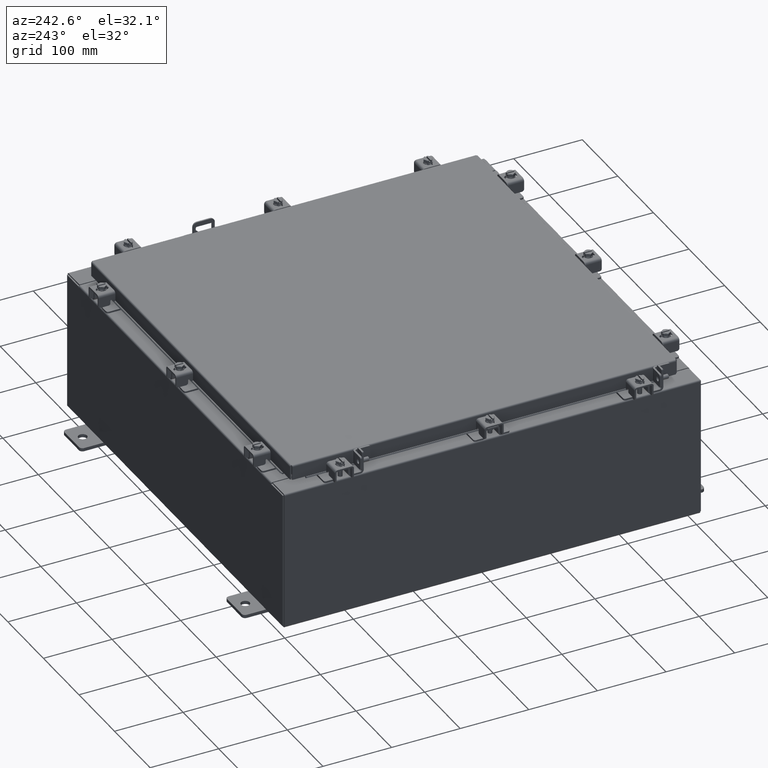
[diagram: clean part render]
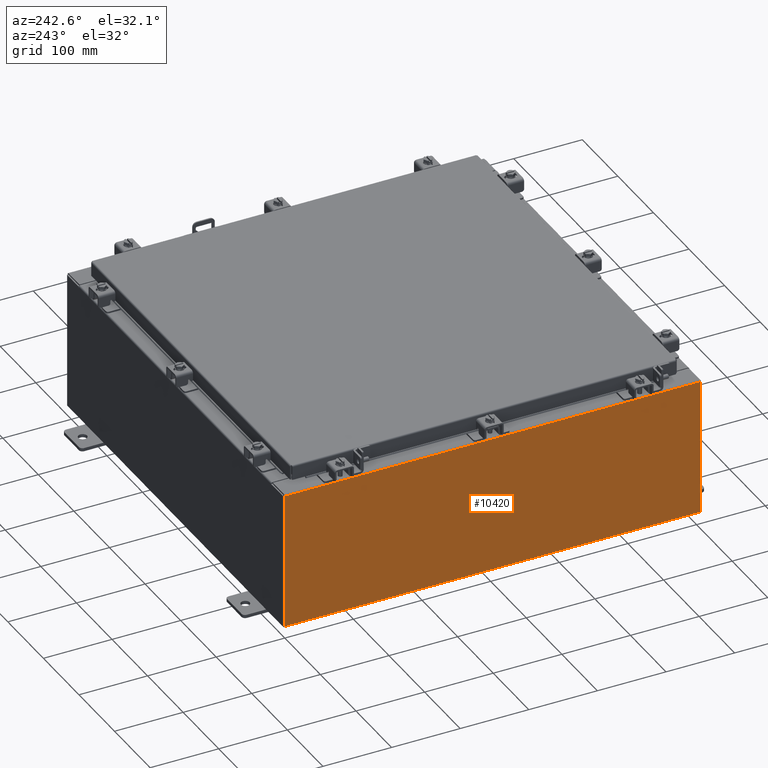
[diagram: same view with one face highlighted and labeled with its STEP entity id]
A machine part, auxiliary view. The second image highlights one B-rep face of the part: STEP entity #10420.
In plain terms, the highlighted planar face has unit normal (1, 0, 0).
Its self-contained STEP definition (entity closure, byte-faithful):
#232 = LINE ( 'NONE', #10596, #13658 ) ;
#281 = VECTOR ( 'NONE', #22235, 39.37007874015748100 ) ;
#474 = ORIENTED_EDGE ( 'NONE', *, *, #12516, .T. ) ;
#588 = DIRECTION ( 'NONE',  ( 1.000000000000000000, 0.0000000000000000000, 3.584876173029202900E-015 ) ) ;
#794 = CARTESIAN_POINT ( 'NONE',  ( -12.00000000000003200, -11.92530000000000000, 7.837599999999999200 ) ) ;
#1379 = VERTEX_POINT ( 'NONE', #5978 ) ;
#2558 = FACE_OUTER_BOUND ( 'NONE', #8101, .T. ) ;
#3320 = VECTOR ( 'NONE', #20250, 39.37007874015748100 ) ;
#4831 = CARTESIAN_POINT ( 'NONE',  ( -12.00000000000003200, -11.92530000000000400, 7.837599999999999200 ) ) ;
#5909 = EDGE_CURVE ( 'NONE', #14974, #7545, #12750, .T. ) ;
#5978 = CARTESIAN_POINT ( 'NONE',  ( -12.00000000000003200, 11.92529999999999800, 7.837599999999999200 ) ) ;
#7545 = VERTEX_POINT ( 'NONE', #794 ) ;
#7965 = CARTESIAN_POINT ( 'NONE',  ( -12.00000000000000400, 11.92529999999999800, 0.01299999999999983600 ) ) ;
#8101 = EDGE_LOOP ( 'NONE', ( #474, #10782, #9654, #17938 ) ) ;
#9654 = ORIENTED_EDGE ( 'NONE', *, *, #13585, .F. ) ;
#10420 = ADVANCED_FACE ( 'NONE', ( #2558 ), #11010, .F. ) ;
#10596 = CARTESIAN_POINT ( 'NONE',  ( -12.00000000000000400, 11.92529999999999800, 0.01299999999999984700 ) ) ;
#10782 = ORIENTED_EDGE ( 'NONE', *, *, #11636, .T. ) ;
#10955 = AXIS2_PLACEMENT_3D ( 'NONE', #18019, #588, #12826 ) ;
#11010 = PLANE ( 'NONE',  #10955 ) ;
#11636 = EDGE_CURVE ( 'NONE', #1379, #16906, #21887, .T. ) ;
#12365 = CARTESIAN_POINT ( 'NONE',  ( -12.00000000000000400, -11.92530000000000400, -4.327932773236202500E-014 ) ) ;
#12516 = EDGE_CURVE ( 'NONE', #7545, #1379, #18877, .T. ) ;
#12750 = LINE ( 'NONE', #12365, #13326 ) ;
#12826 = DIRECTION ( 'NONE',  ( 3.584876173029202900E-015, 0.0000000000000000000, -1.000000000000000000 ) ) ;
#13269 = CARTESIAN_POINT ( 'NONE',  ( -12.00000000000000400, 11.92529999999999800, -4.327932773236202500E-014 ) ) ;
#13326 = VECTOR ( 'NONE', #21141, 39.37007874015748100 ) ;
#13585 = EDGE_CURVE ( 'NONE', #14974, #16906, #232, .T. ) ;
#13658 = VECTOR ( 'NONE', #19331, 39.37007874015748100 ) ;
#14503 = CARTESIAN_POINT ( 'NONE',  ( -12.00000000000000400, -11.92530000000000000, 0.01299999999999984700 ) ) ;
#14974 = VERTEX_POINT ( 'NONE', #14503 ) ;
#16906 = VERTEX_POINT ( 'NONE', #7965 ) ;
#17938 = ORIENTED_EDGE ( 'NONE', *, *, #5909, .T. ) ;
#18019 = CARTESIAN_POINT ( 'NONE',  ( -12.00000000000000400, 0.0000000000000000000, -4.327932773236202500E-014 ) ) ;
#18877 = LINE ( 'NONE', #4831, #281 ) ;
#19331 = DIRECTION ( 'NONE',  ( -0.0000000000000000000, 1.000000000000000000, -0.0000000000000000000 ) ) ;
#20250 = DIRECTION ( 'NONE',  ( 3.584876173029202900E-015, 0.0000000000000000000, -1.000000000000000000 ) ) ;
#21141 = DIRECTION ( 'NONE',  ( -3.584876173029202900E-015, 0.0000000000000000000, 1.000000000000000000 ) ) ;
#21887 = LINE ( 'NONE', #13269, #3320 ) ;
#22235 = DIRECTION ( 'NONE',  ( 0.0000000000000000000, 1.000000000000000000, 0.0000000000000000000 ) ) ;